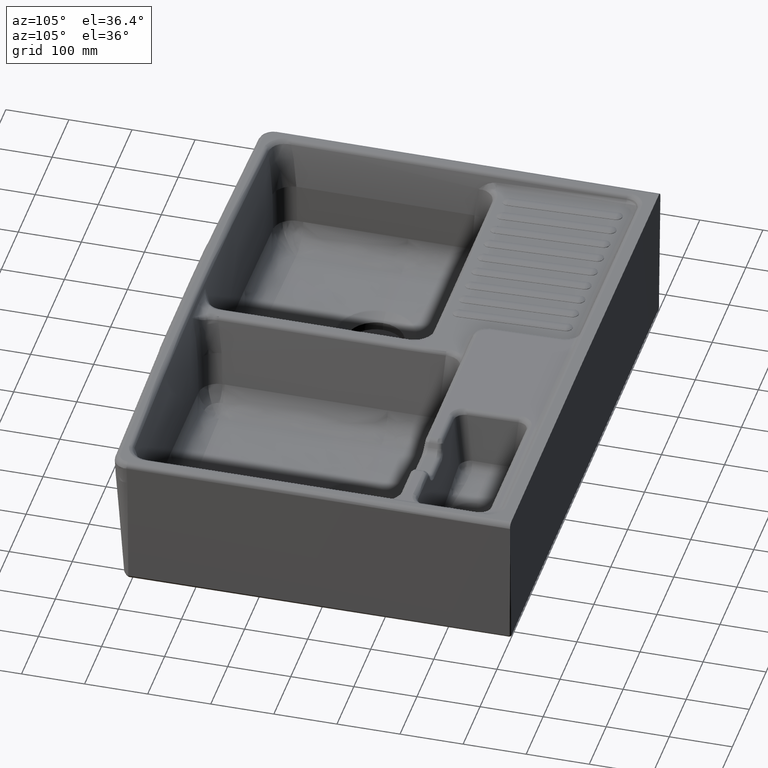
[diagram: clean part render]
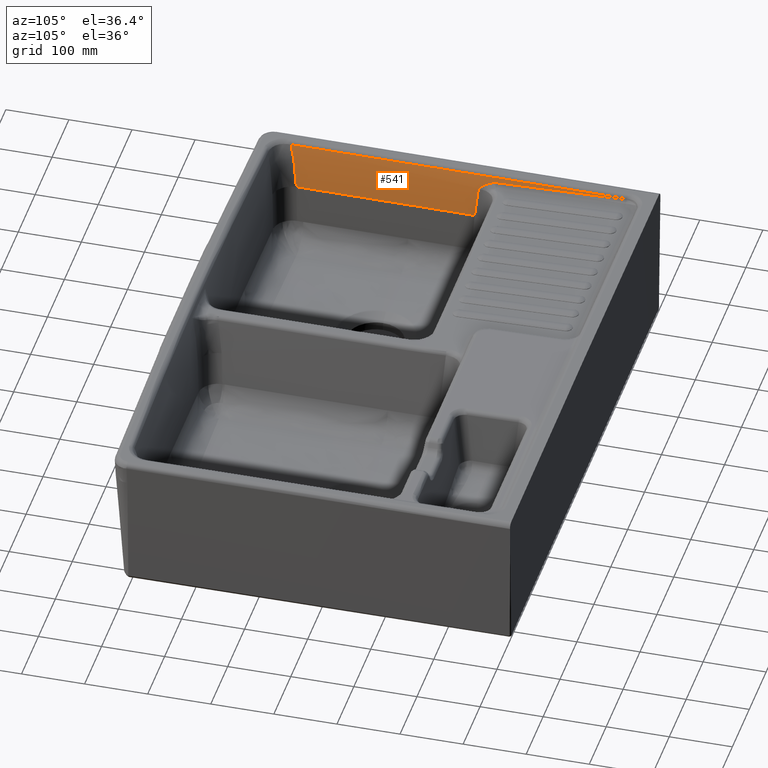
[diagram: same view with one face highlighted and labeled with its STEP entity id]
A machine part, auxiliary view. The second image highlights one B-rep face of the part: STEP entity #541.
In plain terms, the highlighted face is a freeform B-spline surface patch.
Its self-contained STEP definition (entity closure, byte-faithful):
#541=ADVANCED_FACE('',(#1398),#966,.T.);
#966=B_SPLINE_SURFACE_WITH_KNOTS('',6,1,((#34094,#34095),(#34096,#34097),
(#34098,#34099),(#34100,#34101),(#34102,#34103),(#34104,#34105),(#34106,
#34107)),.UNSPECIFIED.,.F.,.F.,.F.,(7,7),(2,2),(0.,1.),(0.,1.),
 .UNSPECIFIED.);
#1398=FACE_OUTER_BOUND('',#1859,.T.);
#1859=EDGE_LOOP('',(#3899,#3900,#3901,#3902,#3903,#3904,#3905,#3906,#3907,
#3908,#3909,#3910));
#3899=ORIENTED_EDGE('',*,*,#5987,.T.);
#3900=ORIENTED_EDGE('',*,*,#5986,.T.);
#3901=ORIENTED_EDGE('',*,*,#5978,.T.);
#3902=ORIENTED_EDGE('',*,*,#5981,.T.);
#3903=ORIENTED_EDGE('',*,*,#6099,.F.);
#3904=ORIENTED_EDGE('',*,*,#6100,.F.);
#3905=ORIENTED_EDGE('',*,*,#6096,.T.);
#3906=ORIENTED_EDGE('',*,*,#6095,.T.);
#3907=ORIENTED_EDGE('',*,*,#5982,.T.);
#3908=ORIENTED_EDGE('',*,*,#5984,.T.);
#3909=ORIENTED_EDGE('',*,*,#5983,.T.);
#3910=ORIENTED_EDGE('',*,*,#5988,.T.);
#4803=VERTEX_POINT('',#26698);
#4883=VERTEX_POINT('',#30345);
#4885=VERTEX_POINT('',#30502);
#4886=VERTEX_POINT('',#30518);
#4887=VERTEX_POINT('',#30590);
#4888=VERTEX_POINT('',#30643);
#4889=VERTEX_POINT('',#30644);
#4890=VERTEX_POINT('',#30768);
#4891=VERTEX_POINT('',#30773);
#4963=VERTEX_POINT('',#33961);
#4964=VERTEX_POINT('',#33977);
#4966=VERTEX_POINT('',#34089);
#5978=EDGE_CURVE('',#4886,#4885,#7173,.T.);
#5981=EDGE_CURVE('',#4885,#4887,#7176,.T.);
#5982=EDGE_CURVE('',#4883,#4803,#7177,.T.);
#5983=EDGE_CURVE('',#4888,#4889,#7178,.T.);
#5984=EDGE_CURVE('',#4803,#4888,#7179,.T.);
#5986=EDGE_CURVE('',#4890,#4886,#7181,.T.);
#5987=EDGE_CURVE('',#4891,#4890,#7182,.T.);
#5988=EDGE_CURVE('',#4889,#4891,#7183,.T.);
#6095=EDGE_CURVE('',#4963,#4883,#7290,.T.);
#6096=EDGE_CURVE('',#4964,#4963,#7291,.T.);
#6099=EDGE_CURVE('',#4966,#4887,#7294,.T.);
#6100=EDGE_CURVE('',#4964,#4966,#7295,.T.);
#7173=B_SPLINE_CURVE_WITH_KNOTS('',3,(#30503,#30504,#30505,#30506,#30507,
#30508,#30509,#30510,#30511,#30512,#30513,#30514,#30515,#30516,#30517),
 .UNSPECIFIED.,.F.,.F.,(4,2,2,2,1,1,1,2,4),(0.,0.5,0.750000000000001,0.875000000000001,
0.937500000000001,0.968750000000001,0.984375,0.9921875,1.),
 .UNSPECIFIED.);
#7176=B_SPLINE_CURVE_WITH_KNOTS('',3,(#30591,#30592,#30593,#30594),
 .UNSPECIFIED.,.F.,.F.,(4,4),(0.,1.),.UNSPECIFIED.);
#7177=B_SPLINE_CURVE_WITH_KNOTS('',1,(#30623,#30624),.UNSPECIFIED.,.F.,
 .F.,(2,2),(0.,1.),.UNSPECIFIED.);
#7178=B_SPLINE_CURVE_WITH_KNOTS('',3,(#30639,#30640,#30641,#30642),
 .UNSPECIFIED.,.F.,.F.,(4,4),(0.,1.),.UNSPECIFIED.);
#7179=B_SPLINE_CURVE_WITH_KNOTS('',3,(#30645,#30646,#30647,#30648,#30649,
#30650,#30651,#30652,#30653,#30654,#30655,#30656,#30657,#30658,#30659,#30660,
#30661),.UNSPECIFIED.,.F.,.F.,(4,2,1,1,1,1,1,2,2,2,4),(0.,0.00195312500000045,
0.0039062500000009,0.00781250000000091,0.0156250000000009,0.0312500000000012,
0.0625000000000015,0.125000000000001,0.250000000000001,0.500000000000001,
1.),.UNSPECIFIED.);
#7181=B_SPLINE_CURVE_WITH_KNOTS('',3,(#30757,#30758,#30759,#30760,#30761,
#30762,#30763,#30764,#30765,#30766,#30767),.UNSPECIFIED.,.F.,.F.,(4,2,1,
1,1,2,4),(0.,0.499999999999992,0.749999999999991,0.874999999999993,0.937499999999995,
0.968749999999998,1.),.UNSPECIFIED.);
#7182=B_SPLINE_CURVE_WITH_KNOTS('',3,(#30769,#30770,#30771,#30772),
 .UNSPECIFIED.,.F.,.F.,(4,4),(0.,1.),.UNSPECIFIED.);
#7183=B_SPLINE_CURVE_WITH_KNOTS('',3,(#30774,#30775,#30776,#30777,#30778,
#30779),.UNSPECIFIED.,.F.,.F.,(4,2,4),(0.,0.5,1.),.UNSPECIFIED.);
#7290=B_SPLINE_CURVE_WITH_KNOTS('',3,(#33937,#33938,#33939,#33940,#33941,
#33942,#33943,#33944,#33945,#33946,#33947,#33948,#33949,#33950,#33951,#33952,
#33953,#33954,#33955,#33956,#33957,#33958,#33959,#33960),.UNSPECIFIED.,
 .F.,.F.,(4,2,2,1,1,2,2,2,2,1,1,1,1,2,4),(0.,0.500000000000004,0.515625000000004,
0.531250000000005,0.562500000000004,0.625000000000004,0.750000000000003,
0.875000000000002,0.937500000000001,0.968750000000001,0.984375,0.9921875,
0.99609375,0.998046875,1.),.UNSPECIFIED.);
#7291=B_SPLINE_CURVE_WITH_KNOTS('',3,(#33962,#33963,#33964,#33965,#33966,
#33967,#33968,#33969,#33970,#33971,#33972,#33973,#33974,#33975,#33976),
 .UNSPECIFIED.,.F.,.F.,(4,2,1,1,1,1,1,2,2,4),(0.,0.00390624999999977,0.00781249999999955,
0.0156249999999991,0.0312499999999999,0.0624999999999998,0.124999999999999,
0.25,0.500000000000001,1.),.UNSPECIFIED.);
#7294=B_SPLINE_CURVE_WITH_KNOTS('',6,(#34082,#34083,#34084,#34085,#34086,
#34087,#34088),.UNSPECIFIED.,.F.,.F.,(7,7),(0.,1.),.UNSPECIFIED.);
#7295=B_SPLINE_CURVE_WITH_KNOTS('',3,(#34090,#34091,#34092,#34093),
 .UNSPECIFIED.,.F.,.F.,(4,4),(0.,1.),.UNSPECIFIED.);
#26698=CARTESIAN_POINT('',(-411.646954397496,20.4117079588593,-76.0736727765516));
#30345=CARTESIAN_POINT('',(-412.56469873595,-262.370458174098,-76.0737048674708));
#30502=CARTESIAN_POINT('',(-420.022623032223,53.8377527165844,-13.6225534919986));
#30503=CARTESIAN_POINT('',(-418.196847989209,32.7286664527019,-21.7525801654747));
#30504=CARTESIAN_POINT('',(-418.748040340489,36.1659877049044,-19.1461660155539));
#30505=CARTESIAN_POINT('',(-419.203378582591,39.6437318149924,-17.1717856304989));
#30506=CARTESIAN_POINT('',(-419.67509095205,44.9207630132293,-15.1428290257061));
#30507=CARTESIAN_POINT('',(-419.797568930152,46.6898440664554,-14.6220457116122));
#30508=CARTESIAN_POINT('',(-419.924773161244,49.3585574223692,-14.0731597577162));
#30509=CARTESIAN_POINT('',(-419.957783617108,50.2506439274138,-13.9289189968827));
#30510=CARTESIAN_POINT('',(-419.992912879472,51.5925457901904,-13.770569858554));
#30511=CARTESIAN_POINT('',(-420.006883443965,52.2644397561258,-13.7058988789878));
#30512=CARTESIAN_POINT('',(-420.01685386528,53.0499662336355,-13.6558216066194));
#30513=CARTESIAN_POINT('',(-420.020254041859,53.443142008976,-13.6371253471837));
#30514=CARTESIAN_POINT('',(-420.021371347113,53.6117343125353,-13.6304716839589));
#30515=CARTESIAN_POINT('',(-420.022040657104,53.7241488259064,-13.6263379072137));
#30516=CARTESIAN_POINT('',(-420.020757931295,53.7390124207918,-13.63127196569));
#30517=CARTESIAN_POINT('',(-420.022618521418,53.8377549840594,-13.6225544952066));
#30518=CARTESIAN_POINT('',(-418.196693113893,32.7277113395117,-21.753299059221));
#30590=CARTESIAN_POINT('',(-421.052893171452,258.637550779435,-7.1905746155384));
#30591=CARTESIAN_POINT('',(-420.022635000832,53.8377528465363,-13.6224886561379));
#30592=CARTESIAN_POINT('',(-420.339071154253,122.103954094297,-11.4722010610171));
#30593=CARTESIAN_POINT('',(-420.683098443215,190.370245079252,-9.32833844973807));
#30594=CARTESIAN_POINT('',(-421.052933525847,258.636619995472,-7.19063596997173));
#30623=CARTESIAN_POINT('',(-412.564697689983,-262.370457329719,-76.07372));
#30624=CARTESIAN_POINT('',(-411.646963612805,20.4105018831565,-76.07372));
#30639=CARTESIAN_POINT('',(-416.836857042685,24.8496256342373,-28.6353420529518));
#30640=CARTESIAN_POINT('',(-416.837470152143,24.8772418087799,-28.6315847103765));
#30641=CARTESIAN_POINT('',(-416.838083344737,24.9048579835924,-28.6278273862066));
#30642=CARTESIAN_POINT('',(-416.838696620471,24.932474158675,-28.6240700804447));
#30643=CARTESIAN_POINT('',(-416.836786175389,24.8496253993395,-28.635328776787));
#30644=CARTESIAN_POINT('',(-416.838197435887,24.9317484436938,-28.6263988253381));
#30645=CARTESIAN_POINT('',(-411.646963612805,20.4105018831565,-76.07372));
#30646=CARTESIAN_POINT('',(-411.650159522564,20.4153851676525,-76.01428169066));
#30647=CARTESIAN_POINT('',(-411.650229913157,20.4154898070339,-76.0130151139277));
#30648=CARTESIAN_POINT('',(-411.653435256595,20.4203765307198,-75.9535647532596));
#30649=CARTESIAN_POINT('',(-411.658250261707,20.4277092321249,-75.8643801183783));
#30650=CARTESIAN_POINT('',(-411.669534255383,20.4448371800441,-75.656219050073));
#30651=CARTESIAN_POINT('',(-411.692298600578,20.4791663225544,-75.2396431326339));
#30652=CARTESIAN_POINT('',(-411.738616385428,20.5481176064978,-74.4054807822377));
#30653=CARTESIAN_POINT('',(-411.834440977088,20.6871922787775,-72.7331519889173));
#30654=CARTESIAN_POINT('',(-411.922168668262,20.8084088790045,-71.2929981282631));
#30655=CARTESIAN_POINT('',(-412.105545555227,21.0535232637908,-68.404119496227));
#30656=CARTESIAN_POINT('',(-412.238323157981,21.2205076507607,-66.4667635336155));
#30657=CARTESIAN_POINT('',(-412.673457635691,21.7322023299469,-60.6240257465419));
#30658=CARTESIAN_POINT('',(-413.012379862671,22.0876533803277,-56.6879844072487));
#30659=CARTESIAN_POINT('',(-414.232696498567,23.1971566619269,-44.789075960362));
#30660=CARTESIAN_POINT('',(-415.32395856718,23.9943796371864,-36.7392609157079));
#30661=CARTESIAN_POINT('',(-416.836857042661,24.849625635302,-28.6353420530598));
#30757=CARTESIAN_POINT('',(-417.505566897193,28.6231905356644,-25.1298693159066));
#30758=CARTESIAN_POINT('',(-417.632325476108,29.3473340963861,-24.4892425102057));
#30759=CARTESIAN_POINT('',(-417.753840446833,30.0514277512778,-23.8876872668475));
#30760=CARTESIAN_POINT('',(-417.927001917562,31.077489330423,-23.0436849006818));
#30761=CARTESIAN_POINT('',(-418.011307167747,31.5830004015341,-22.6362667695354));
#30762=CARTESIAN_POINT('',(-418.105433409383,32.1596030059077,-22.1864102786788));
#30763=CARTESIAN_POINT('',(-418.151409989912,32.4446141357158,-21.9678416320801));
#30764=CARTESIAN_POINT('',(-418.170878341277,32.5660567158773,-21.8755314328519));
#30765=CARTESIAN_POINT('',(-418.183804484931,32.6468617578065,-21.8142939080701));
#30766=CARTESIAN_POINT('',(-418.184026158225,32.6481715427266,-21.8132186076213));
#30767=CARTESIAN_POINT('',(-418.196847994665,32.7286664328776,-21.7525801404844));
#30768=CARTESIAN_POINT('',(-417.50556451673,28.6231889894901,-25.1298702620297));
#30769=CARTESIAN_POINT('',(-417.084505640424,26.2415741251699,-27.3064414025403));
#30770=CARTESIAN_POINT('',(-417.22172039428,27.0354350437247,-26.5802147656009));
#30771=CARTESIAN_POINT('',(-417.362067155805,27.8293061324467,-25.8546874974262));
#30772=CARTESIAN_POINT('',(-417.505566354752,28.623187458244,-25.1298720570127));
#30773=CARTESIAN_POINT('',(-417.084499703136,26.2415736160386,-27.3064407332598));
#30774=CARTESIAN_POINT('',(-416.838696620471,24.932474158675,-28.6240700804447));
#30775=CARTESIAN_POINT('',(-416.852160238857,24.9439246398637,-28.5519026724142));
#30776=CARTESIAN_POINT('',(-416.8686543607,25.0473454942635,-28.46170095968));
#30777=CARTESIAN_POINT('',(-416.950046231579,25.483648055068,-28.0227268222707));
#30778=CARTESIAN_POINT('',(-417.008088786424,25.809005732845,-27.7107264710813));
#30779=CARTESIAN_POINT('',(-417.084505467618,26.2415731444922,-27.3064423168157));
#33937=CARTESIAN_POINT('',(-417.78802786852,-267.898913358281,-28.6295387266297));
#33938=CARTESIAN_POINT('',(-416.41787676385,-266.417125571375,-35.9287435472591));
#33939=CARTESIAN_POINT('',(-415.278505426935,-265.209447090683,-43.8237270730673));
#33940=CARTESIAN_POINT('',(-414.367324768239,-264.24662206624,-52.5490087598894));
#33941=CARTESIAN_POINT('',(-414.348745921394,-264.227009014992,-52.7288923415873));
#33942=CARTESIAN_POINT('',(-414.302924632555,-264.178662810177,-53.1755952160556));
#33943=CARTESIAN_POINT('',(-414.234553170508,-264.106576241622,-53.8481612011842));
#33944=CARTESIAN_POINT('',(-414.077571965419,-263.941403326724,-55.4350336172103));
#33945=CARTESIAN_POINT('',(-413.947483633101,-263.805018955968,-56.8251901079691));
#33946=CARTESIAN_POINT('',(-413.693438045803,-263.539172880767,-59.6451139577584));
#33947=CARTESIAN_POINT('',(-413.532264726156,-263.371172334007,-61.5779058947299));
#33948=CARTESIAN_POINT('',(-413.226727019598,-263.053630301045,-65.5465676841453));
#33949=CARTESIAN_POINT('',(-413.082336447094,-262.904088899556,-67.5824333972087));
#33950=CARTESIAN_POINT('',(-412.878508757527,-262.693620708872,-70.7109414311075));
#33951=CARTESIAN_POINT('',(-412.812693349861,-262.625771961618,-71.7662226463297));
#33952=CARTESIAN_POINT('',(-412.717234887097,-262.527459591767,-73.3674417755074));
#33953=CARTESIAN_POINT('',(-412.6703226937,-262.479168591791,-74.1726252744831));
#33954=CARTESIAN_POINT('',(-412.617050324039,-262.424343076286,-75.1199261994391));
#33955=CARTESIAN_POINT('',(-412.590783603231,-262.397308799491,-75.5955460387604));
#33956=CARTESIAN_POINT('',(-412.577743264117,-262.383886279273,-75.8338469705615));
#33957=CARTESIAN_POINT('',(-412.572174554904,-262.378154045697,-75.9360810152824));
#33958=CARTESIAN_POINT('',(-412.568466536749,-262.374337062196,-76.0042603789736));
#33959=CARTESIAN_POINT('',(-412.568396615364,-262.374265412712,-76.0054946554548));
#33960=CARTESIAN_POINT('',(-412.564697689983,-262.370457329719,-76.07372));
#33961=CARTESIAN_POINT('',(-417.78809690545,-267.89891313652,-28.6295516367873));
#33962=CARTESIAN_POINT('',(-423.1612341895,-273.694905275313,-5.82798040058295));
#33963=CARTESIAN_POINT('',(-423.14401979187,-273.67646707158,-5.88879926806412));
#33964=CARTESIAN_POINT('',(-423.143673137224,-273.676094994277,-5.89004445737364));
#33965=CARTESIAN_POINT('',(-423.1264840634,-273.657682570644,-5.950852471887));
#33966=CARTESIAN_POINT('',(-423.100719287148,-273.630083539743,-6.04205613807206));
#33967=CARTESIAN_POINT('',(-423.040733376804,-273.565823032619,-6.25480620061985));
#33968=CARTESIAN_POINT('',(-422.921289623819,-273.437850943459,-6.68007233575877));
#33969=CARTESIAN_POINT('',(-422.684517916645,-273.184102454086,-7.52966846310923));
#33970=CARTESIAN_POINT('',(-422.219462994539,-272.685388149422,-9.22511456299847));
#33971=CARTESIAN_POINT('',(-421.83547222011,-272.272974512853,-10.671927047001));
#33972=CARTESIAN_POINT('',(-421.087075295857,-271.46822133789,-13.5569586991038));
#33973=CARTESIAN_POINT('',(-420.614297937515,-270.95848455199,-15.4688636969778));
#33974=CARTESIAN_POINT('',(-419.273516391566,-269.509573185299,-21.169805415376));
#33975=CARTESIAN_POINT('',(-418.483556534594,-268.650695992059,-24.9242422335082));
#33976=CARTESIAN_POINT('',(-417.78802786852,-267.898913358281,-28.6295387266297));
#33977=CARTESIAN_POINT('',(-423.161160080202,-273.694855865208,-5.8280173983707));
#34082=CARTESIAN_POINT('',(-421.43244259689,259.049494250387,-5.82752409769883));
#34083=CARTESIAN_POINT('',(-421.368575149432,258.980079921025,-6.05465978755123));
#34084=CARTESIAN_POINT('',(-421.304949543795,258.910908069764,-6.28180068474917));
#34085=CARTESIAN_POINT('',(-421.241566257687,258.841979751519,-6.50894879944268));
#34086=CARTESIAN_POINT('',(-421.178425753632,258.77329600496,-6.73610613349469));
#34087=CARTESIAN_POINT('',(-421.115528478478,258.704857851431,-6.96327467992165));
#34088=CARTESIAN_POINT('',(-421.052874862943,258.636666293937,-7.19045642237399));
#34089=CARTESIAN_POINT('',(-421.432351696871,259.049458719225,-5.82775692070366));
#34090=CARTESIAN_POINT('',(-423.161215940368,-273.694819706565,-5.82797533070894));
#34091=CARTESIAN_POINT('',(-422.584556969486,-96.1135866207845,-5.82797533070894));
#34092=CARTESIAN_POINT('',(-422.008937994891,81.4681964214957,-5.82797532805759));
#34093=CARTESIAN_POINT('',(-421.432279027721,259.049499507097,-5.82797532805758));
#34094=CARTESIAN_POINT('',(-431.48615,-332.18503,19.21474));
#34095=CARTESIAN_POINT('',(-429.41516,305.94504,19.21474));
#34096=CARTESIAN_POINT('',(-425.98685,-332.20288,3.93551));
#34097=CARTESIAN_POINT('',(-423.91586,305.92719,3.93551));
#34098=CARTESIAN_POINT('',(-420.97397,-332.21915,-11.66866));
#34099=CARTESIAN_POINT('',(-418.90298,305.91092,-11.66866));
#34100=CARTESIAN_POINT('',(-417.06186,-332.23184,-27.32077));
#34101=CARTESIAN_POINT('',(-414.99088,305.89822,-27.32077));
#34102=CARTESIAN_POINT('',(-415.05701,-332.23834,-43.60504));
#34103=CARTESIAN_POINT('',(-412.98602,305.89172,-43.60504));
#34104=CARTESIAN_POINT('',(-413.66354,-332.24286,-59.93461));
#34105=CARTESIAN_POINT('',(-411.59256,305.88721,-59.93461));
#34106=CARTESIAN_POINT('',(-412.79147,-332.2457,-76.07372));
#34107=CARTESIAN_POINT('',(-410.72049,305.88437,-76.07372));